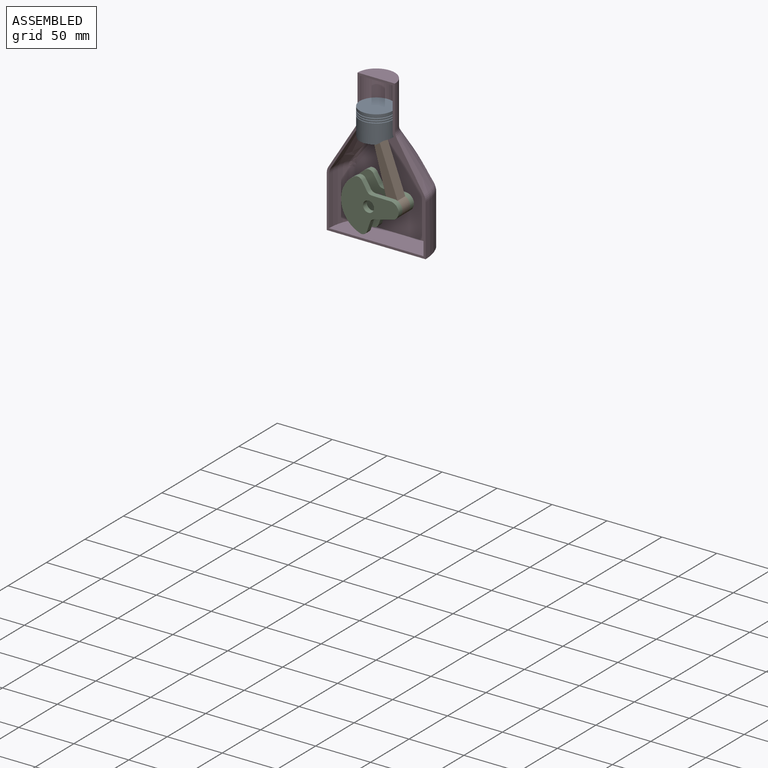
[diagram: assembled view]
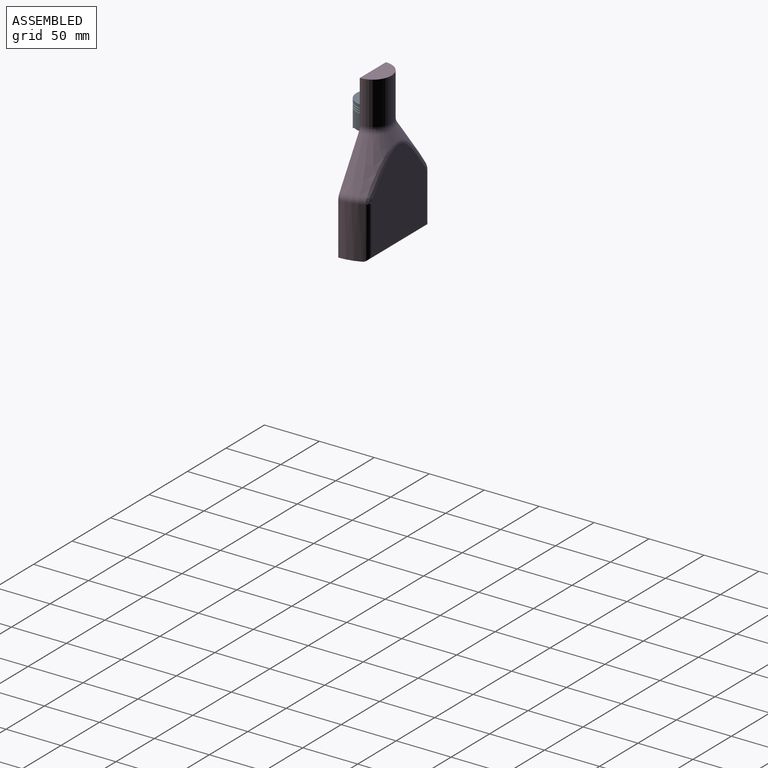
[diagram: assembled view, second angle]
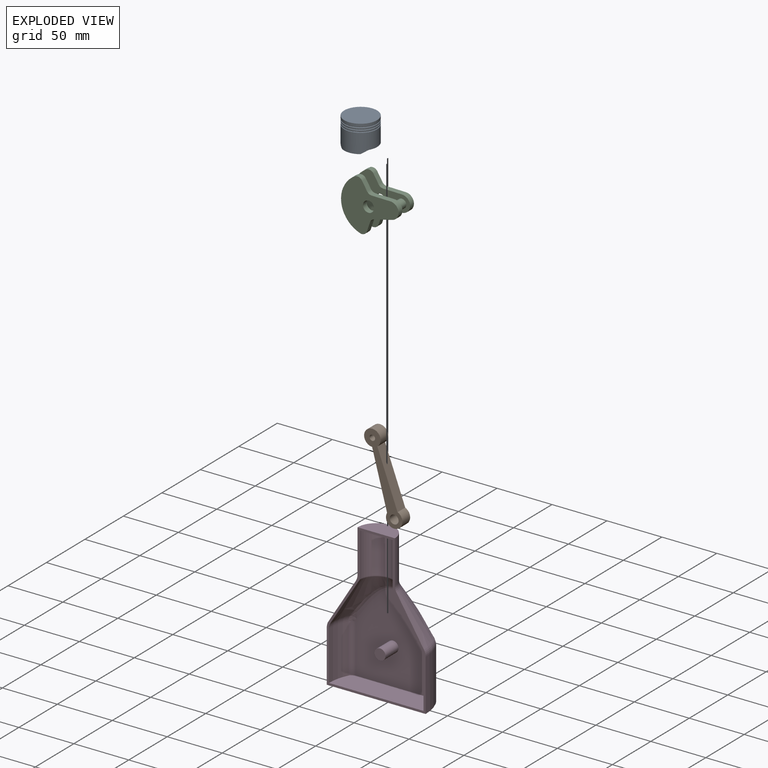
[diagram: exploded view]
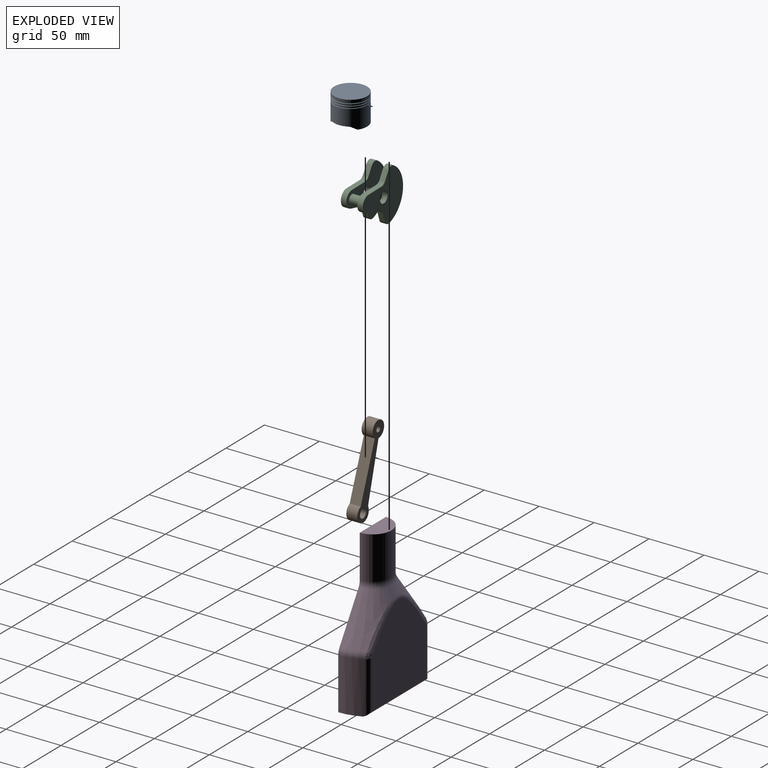
[diagram: exploded view, second angle]
ASSEMBLY  parts=4 mates=4
PART A: 32 faces, bbox 33.2x33.2x25 mm
  f0: cylinder r=15mm len=30mm, axis (0,0,-1), area 94.2mm2, adj f28,f29
  f1: cylinder r=15mm len=30mm, axis (0,0,-1), area 94.2mm2, adj f27,f28
  f2: cylinder r=15mm len=30mm, axis (0,0,-1), area 1513.2mm2, adj f17,f18,f19,f20,f21,f22,f23,f24
  f3: cylinder r=5mm len=10mm, axis (0,1,0), area 101.5mm2, adj f6,f8,f9,f11
  f4: plane 21.82x7mm, normal (0,0,-1), area 109.8mm2, adj f6,f9
  f5: plane 21.82x7mm, normal (0,0,-1), area 109.8mm2, adj f6,f8
  f6: cylinder r=12mm len=24mm, axis (0,0,-1), area 1174.8mm2, adj f3,f4,f5,f7,f8,f9,f17,f18
  f7: cylinder r=5mm len=10mm, axis (0,1,0), area 101.5mm2, adj f6,f8,f9,f12
  f8: plane 21.82x12mm, normal (-1,0,0), area 181.8mm2, adj f3,f5,f6,f7,f10,f11,f12
  f9: plane 21.82x12mm, normal (1,0,0), area 181.8mm2, adj f3,f4,f6,f7,f10,f11,f12
  f10: plane 10x10mm, normal (0,0,-1), area 100mm2, adj f8,f9,f11,f12
  f11: plane 13x10mm, normal (0,-1,0), area 99.6mm2, adj f3,f8,f9,f10,f15
  f12: plane 13x10mm, normal (0,1,0), area 99.6mm2, adj f7,f8,f9,f10,f14
  f13: cylinder r=12mm len=5mm, axis (0,0,-1), area 19.7mm2, adj f14
  f14: cylinder r=2.5mm len=7mm, axis (0,1,0), area 107.9mm2, adj f12,f13
  f15: cylinder r=2.5mm len=7mm, axis (0,1,0), area 107.9mm2, adj f11,f16
  f16: cylinder r=12mm len=5mm, axis (0,0,-1), area 19.7mm2, adj f15
  f17: cylinder r=5mm len=6.47mm, axis (1,0,0), area 12.4mm2, adj f2,f6,f19,f24
  f18: cylinder r=5mm len=6.47mm, axis (1,0,0), area 12.4mm2, adj f2,f6,f20,f24
  f19: plane 13.77x5.17mm, normal (0,0,-1), area 43.4mm2, adj f2,f6,f17,f21
  f20: plane 13.77x5.17mm, normal (0,0,-1), area 43.4mm2, adj f2,f6,f18,f22
  f21: cylinder r=5mm len=6.47mm, axis (1,0,0), area 12.4mm2, adj f2,f6,f19,f23
  f22: cylinder r=5mm len=6.47mm, axis (1,0,0), area 12.4mm2, adj f2,f6,f20,f23
  f23: plane 22.62x2.65mm, normal (0,0.59,-0.8), area 40.6mm2, adj f2,f6,f21,f22,f26
  f24: plane 22.62x2.65mm, normal (0,-0.59,-0.8), area 40.6mm2, adj f2,f6,f17,f18,f25
  f25: plane 16.58x2.5mm, normal (0,0,-1), area 28.1mm2, adj f2,f24
  f26: plane 16.58x2.5mm, normal (0,0,-1), area 28.1mm2, adj f2,f23
  f27: torus R=15mm, axis (0,0,1), area 144.9mm2, adj f1,f2
  f28: torus R=15mm, axis (0,0,1), area 144.9mm2, adj f0,f1
  f29: torus R=15mm, axis (0,0,1), area 144.9mm2, adj f0,f31
  f30: plane 30x30mm, normal (0,0,1), area 706.9mm2, adj f31
  f31: cylinder r=15mm len=30mm, axis (0,0,-1), area 235.6mm2, adj f29,f30
PART B: 8 faces, bbox 15x10x80 mm
  f0: plane 80x15mm, normal (0,-1,0), area 661.5mm2, adj f1,f2,f4,f5,f6,f7
  f1: plane 52.34x10mm, normal (-1,0,0.05), area 524mm2, adj f0,f2,f3,f6
  f2: cylinder r=7.5mm len=15mm, axis (0,1,0), area 420.3mm2, adj f0,f1,f3,f7
  f3: plane 80x15mm, normal (0,1,0), area 661.5mm2, adj f1,f2,f4,f5,f6,f7
  f4: cylinder r=4mm len=10mm, axis (0,1,0), area 251.3mm2, adj f0,f3
  f5: cylinder r=2.5mm len=10mm, axis (0,1,0), area 157.1mm2, adj f0,f3
  f6: cylinder r=7.5mm len=15mm, axis (0,1,0), area 361.8mm2, adj f0,f1,f3,f7
  f7: plane 52.34x10mm, normal (1,0,0.05), area 524mm2, adj f0,f2,f3,f6
PART C: 27 faces, bbox 46.5x20x52.5 mm
  f0: plane 7.95x5mm, normal (-0.42,0,0.91), area 43.9mm2, adj f7,f8,f23,f26
  f1: plane 16.95x5mm, normal (-0.99,0,0.12), area 85.4mm2, adj f2,f7,f8,f23
  f2: cylinder r=7.5mm len=14.88mm, axis (0,-1,0), area 108.4mm2, adj f1,f3,f7,f8
  f3: plane 16.95x5mm, normal (0.99,0,0.12), area 85.4mm2, adj f2,f7,f8,f24
  f4: plane 7.95x5mm, normal (0.42,0,0.91), area 43.9mm2, adj f7,f8,f24,f25
  f5: cylinder r=25mm len=45.65mm, axis (0,-1,0), area 287.7mm2, adj f7,f8,f25,f26
  f6: cylinder r=5mm len=10mm, axis (0,-1,0), area 157.1mm2, adj f7,f8
  f7: plane 52.5x46.52mm, normal (0,1,0), area 1271.9mm2, adj f0,f1,f2,f3,f4,f5,f6,f23
  f8: plane 52.5x46.52mm, normal (0,-1,0), area 1221.6mm2, adj f0,f1,f2,f3,f4,f5,f6,f18
  f9: plane 7.95x5mm, normal (-0.42,0,0.91), area 43.9mm2, adj f16,f17,f21,f22
  f10: plane 16.95x5mm, normal (-0.99,0,0.12), area 85.4mm2, adj f11,f16,f17,f22
  f11: cylinder r=7.5mm len=14.88mm, axis (0,1,0), area 108.4mm2, adj f10,f12,f16,f17
  f12: plane 16.95x5mm, normal (0.99,0,0.12), area 85.4mm2, adj f11,f16,f17,f19
  f13: plane 7.95x5mm, normal (0.42,0,0.91), area 43.9mm2, adj f16,f17,f19,f20
  f14: cylinder r=25mm len=45.65mm, axis (0,1,0), area 287.7mm2, adj f16,f17,f20,f21
  f15: cylinder r=5mm len=10mm, axis (0,1,0), area 157.1mm2, adj f16,f17
  f16: plane 52.5x46.52mm, normal (0,-1,0), area 1271.9mm2, adj f9,f10,f11,f12,f13,f14,f15,f19
  f17: plane 52.5x46.52mm, normal (0,1,0), area 1221.6mm2, adj f9,f10,f11,f12,f13,f14,f15,f18
  f18: cylinder r=4mm len=10mm, axis (0,1,0), area 251.3mm2, adj f8,f17
  f19: cylinder r=5mm len=5mm, axis (0,1,0), area 25.2mm2, adj f12,f13,f16,f17
  f20: cylinder r=5mm len=6.57mm, axis (0,1,0), area 38.9mm2, adj f13,f14,f16,f17
  f21: cylinder r=5mm len=6.57mm, axis (0,1,0), area 38.9mm2, adj f9,f14,f16,f17
  f22: cylinder r=5mm len=5mm, axis (0,-1,0), area 25.2mm2, adj f9,f10,f16,f17
  f23: cylinder r=5mm len=5mm, axis (0,1,0), area 25.2mm2, adj f0,f1,f7,f8
  f24: cylinder r=5mm len=5mm, axis (0,-1,0), area 25.2mm2, adj f3,f4,f7,f8
  f25: cylinder r=5mm len=6.57mm, axis (0,-1,0), area 38.9mm2, adj f4,f5,f7,f8
  f26: cylinder r=5mm len=6.57mm, axis (0,-1,0), area 38.9mm2, adj f0,f5,f7,f8
PART D: 34 faces, bbox 97.4x43.5x137 mm
  f0: plane 90x18.85mm, normal (0,0,-1), area 1645.2mm2, adj f1,f2,f17,f32
  f1: cylinder r=45mm len=47.14mm, axis (0,0,-1), area 1040.3mm2, adj f0,f5,f17,f30,f32
  f2: cylinder r=45mm len=47.14mm, axis (0,0,-1), area 1040.3mm2, adj f0,f4,f17,f32,f33
  f3: cone r=17mm half-angle=31.9deg, axis (0,0,-1), area 2452mm2, adj f4,f5,f17,f18,f29
  f4: torus R=35mm, axis (0,0,1), area 122.8mm2, adj f2,f3,f17,f31
  f5: torus R=35mm, axis (0,0,1), area 122.8mm2, adj f1,f3,f17,f28
  f6: cone r=15.3mm half-angle=31.9deg, axis (0,0,-1), area 2317.4mm2, adj f10,f11,f15,f17,f25
  f7: cylinder r=43mm len=44.57mm, axis (0,0,-1), area 880.3mm2, adj f9,f11,f17,f27
  f8: cylinder r=43mm len=44.57mm, axis (0,0,-1), area 880.3mm2, adj f9,f10,f17,f23
  f9: plane 86x21.85mm, normal (0,0,1), area 1791.4mm2, adj f7,f8,f17,f19,f23,f27
  f10: torus R=33mm, axis (0,0,-1), area 109.8mm2, adj f6,f8,f17,f24
  f11: torus R=33mm, axis (0,0,-1), area 109.8mm2, adj f6,f7,f17,f26
  f12: plane 34x17mm, normal (0,0,1), area 454mm2, adj f16,f17
  f13: plane 30x15mm, normal (0,0,-1), area 353.4mm2, adj f14,f17
  f14: cylinder r=15mm len=40mm, axis (0,0,-1), area 1885mm2, adj f13,f15,f17
  f15: torus R=17mm, axis (0,0,-1), area 52.8mm2, adj f6,f14,f17
  f16: cylinder r=17mm len=39.14mm, axis (0,0,-1), area 2090.5mm2, adj f12,f17,f18
  f17: plane 137x90mm, normal (0,-1,0), area 813.4mm2, adj f0,f1,f2,f3,f4,f5,f6,f7
  f18: torus R=27mm, axis (0,0,-1), area 306.2mm2, adj f3,f16,f17
  f19: plane 80x68.12mm, normal (0,-1,0), area 4472mm2, adj f9,f21,f23,f24,f25,f26,f27
  f20: plane 10x10mm, normal (0,-1,0), area 78.5mm2, adj f21
  f21: cylinder r=5mm len=16.85mm, axis (0,-1,0), area 529.2mm2, adj f19,f20
  f22: plane 77.58x70.56mm, normal (0,1,0), area 4551.5mm2, adj f28,f29,f30,f31,f32,f33
  f23: cylinder r=5mm len=44.57mm, axis (0,0,-1), area 247.7mm2, adj f8,f9,f19,f24
  f24: bspline ~7.6x6.12mm, area 24.7mm2, adj f10,f19,f23,f25
  f25: bspline ~83.42x42.12mm, area 454.7mm2, adj f6,f19,f24,f26
  f26: bspline ~9.13x6.12mm, area 24.7mm2, adj f11,f19,f25,f27
  f27: cylinder r=5mm len=44.57mm, axis (0,0,-1), area 247.7mm2, adj f7,f9,f19,f26
  f28: bspline ~8.26x5.65mm, area 24.1mm2, adj f5,f22,f29,f30
  f29: bspline ~86.33x42.47mm, area 451.5mm2, adj f3,f22,f28,f31
  f30: cylinder r=5mm len=46.55mm, axis (0,0,-1), area 240.8mm2, adj f1,f22,f28,f32
  f31: bspline ~8.26x5.65mm, area 24.1mm2, adj f4,f22,f29,f33
  f32: cylinder r=5mm len=81.73mm, axis (1,0,0), area 605.2mm2, adj f0,f1,f2,f22,f30,f33
  f33: cylinder r=5mm len=46.55mm, axis (0,0,-1), area 240.8mm2, adj f2,f22,f31,f32
PLACE A t=(-7.07,-11.13,-35.63)mm
PLACE B rot(axis=(0,-1,0),17.8deg) t=(18.92,-11.13,-31.56)mm
PLACE C rot(axis=(0,1,0),83.6deg) t=(-7.07,-11.13,-14.73)mm
PLACE D t=(-7.07,-11.13,-14.73)mm fixed
MATE revolute B.f2 <-> A.f3  axis (0,-1,0) through (-7.07,-16.13,49.37)mm
MATE revolute B.f4 <-> C.f2  axis (0,1,0) through (12.81,-16.13,-12.51)mm
MATE slider A.f0 <-> D.f1  axis (0,0,-1) through (-7.07,-11.13,48.12)mm
MATE revolute C.f5 <-> D.f21  axis (0,-1,0) through (-7.07,-6.13,-14.73)mm
